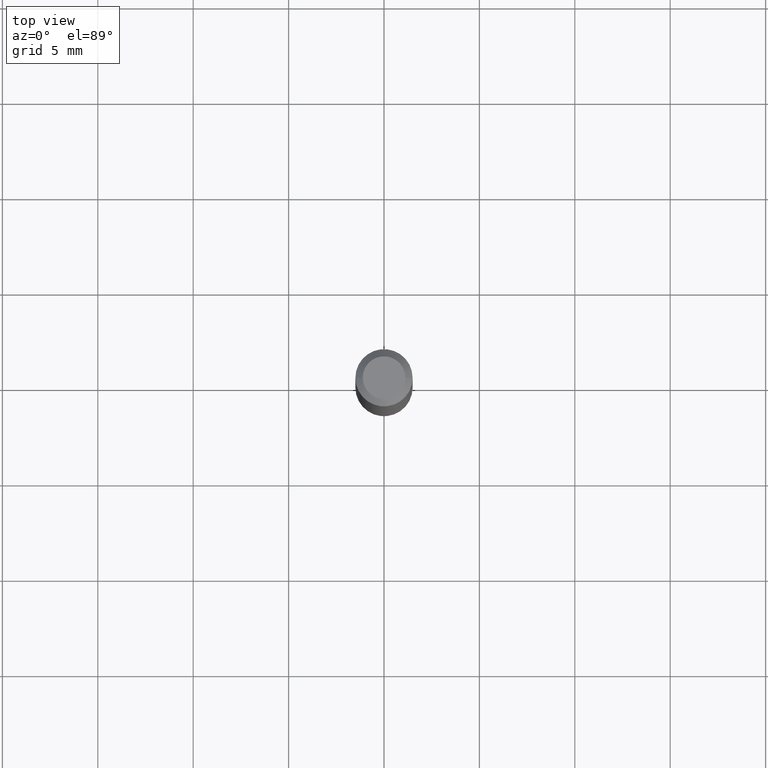
[diagram: clean part render]
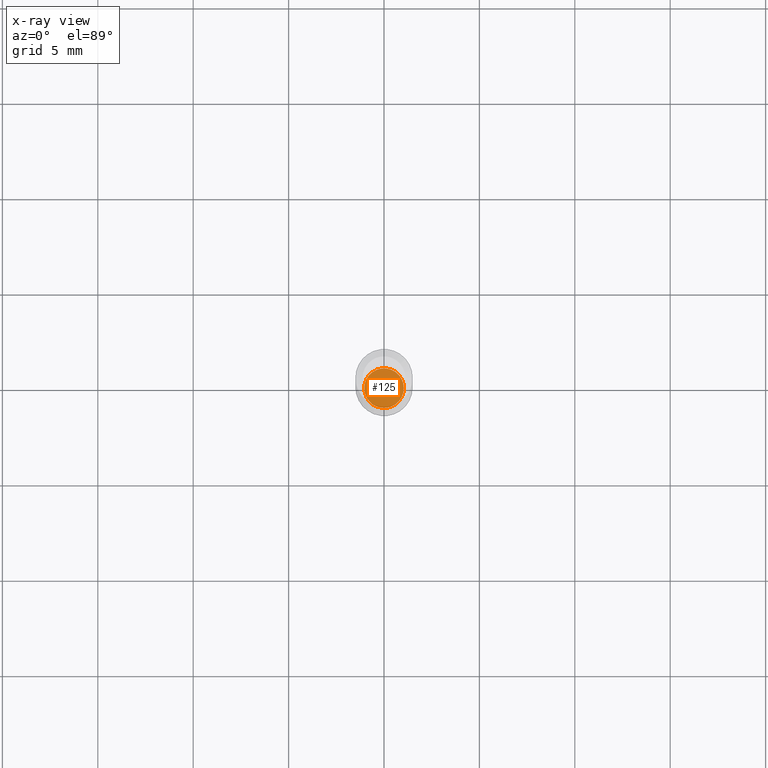
[diagram: x-ray — body ghosted, one internal face saturated and labeled with its STEP entity id]
A machine part, top view, then the same camera in x-ray: the body is ghosted and one INTERNAL B-rep face — a face not visible from any outside direction — is saturated and labeled: STEP entity #125.
In plain terms, the highlighted planar face has unit normal (-0, 0, 1).
Its self-contained STEP definition (entity closure, byte-faithful):
#7 = CIRCLE ( 'NONE', #362, 0.04084999999999999742 ) ;
#21 = AXIS2_PLACEMENT_3D ( 'NONE', #333, #415, #225 ) ;
#29 = CARTESIAN_POINT ( 'NONE',  ( -0.04084999999999999742, -4.078428701499507560E-15, -1.252000000000000224 ) ) ;
#76 = PLANE ( 'NONE',  #21 ) ;
#84 = CARTESIAN_POINT ( 'NONE',  ( 3.061726945343791391E-29, -4.371334636231619274E-15, -1.252000000000000224 ) ) ;
#87 = VERTEX_POINT ( 'NONE', #29 ) ;
#125 = ADVANCED_FACE ( 'NONE', ( #409 ), #76, .F. ) ;
#158 = DIRECTION ( 'NONE',  ( -2.445468806185136597E-29, 3.491481338843145583E-15, 1.000000000000000000 ) ) ;
#177 = CARTESIAN_POINT ( 'NONE',  ( 3.061726945343791391E-29, -4.371334636231619274E-15, -1.252000000000000224 ) ) ;
#207 = AXIS2_PLACEMENT_3D ( 'NONE', #177, #445, #365 ) ;
#223 = ORIENTED_EDGE ( 'NONE', *, *, #303, .F. ) ;
#225 = DIRECTION ( 'NONE',  ( 1.000000000000000000, -6.982962677686265922E-15, 4.876176775795935793E-29 ) ) ;
#232 = DIRECTION ( 'NONE',  ( 1.000000000000000000, -6.982962677686261189E-15, 0.000000000000000000 ) ) ;
#250 = CARTESIAN_POINT ( 'NONE',  ( 0.04084999999999999742, -4.656588661615103213E-15, -1.252000000000000224 ) ) ;
#296 = VERTEX_POINT ( 'NONE', #250 ) ;
#303 = EDGE_CURVE ( 'NONE', #296, #87, #309, .T. ) ;
#304 = ORIENTED_EDGE ( 'NONE', *, *, #368, .F. ) ;
#309 = CIRCLE ( 'NONE', #207, 0.04084999999999999742 ) ;
#333 = CARTESIAN_POINT ( 'NONE',  ( 3.061726945343791391E-29, -4.371334636231619274E-15, -1.252000000000000224 ) ) ;
#362 = AXIS2_PLACEMENT_3D ( 'NONE', #84, #158, #232 ) ;
#365 = DIRECTION ( 'NONE',  ( 1.000000000000000000, -6.982962677686261189E-15, 0.000000000000000000 ) ) ;
#368 = EDGE_CURVE ( 'NONE', #87, #296, #7, .T. ) ;
#409 = FACE_OUTER_BOUND ( 'NONE', #457, .T. ) ;
#415 = DIRECTION ( 'NONE',  ( -2.438088387897960049E-29, 3.491481338843145188E-15, 1.000000000000000000 ) ) ;
#445 = DIRECTION ( 'NONE',  ( -2.445468806185136597E-29, 3.491481338843145583E-15, 1.000000000000000000 ) ) ;
#457 = EDGE_LOOP ( 'NONE', ( #223, #304 ) ) ;